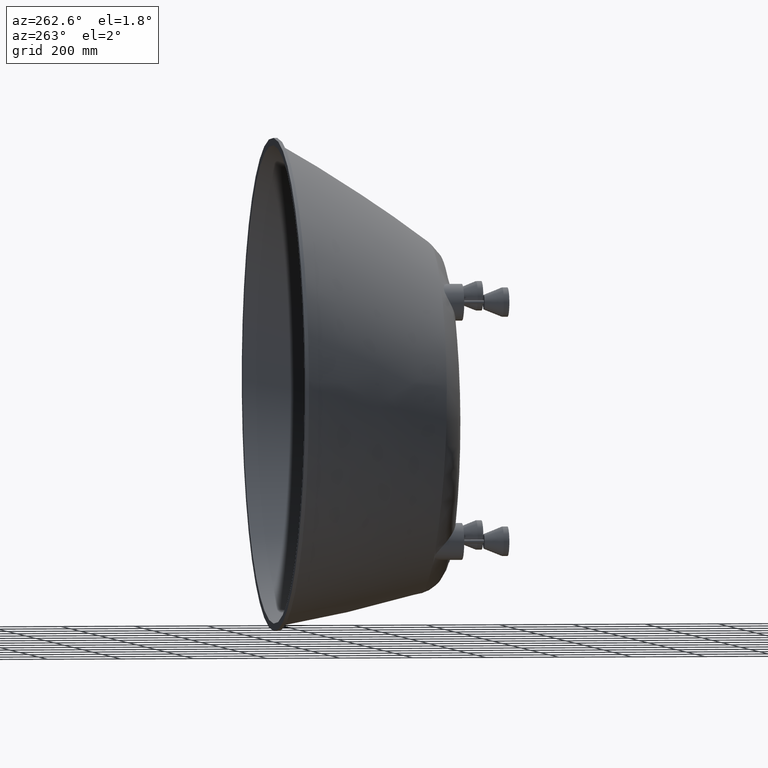
[diagram: clean part render]
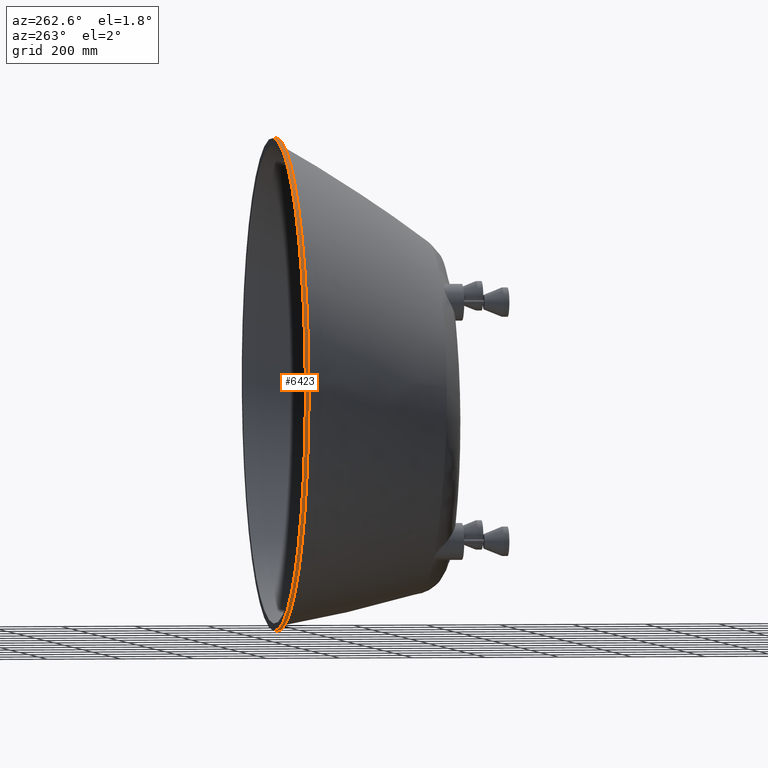
[diagram: same view with one face highlighted and labeled with its STEP entity id]
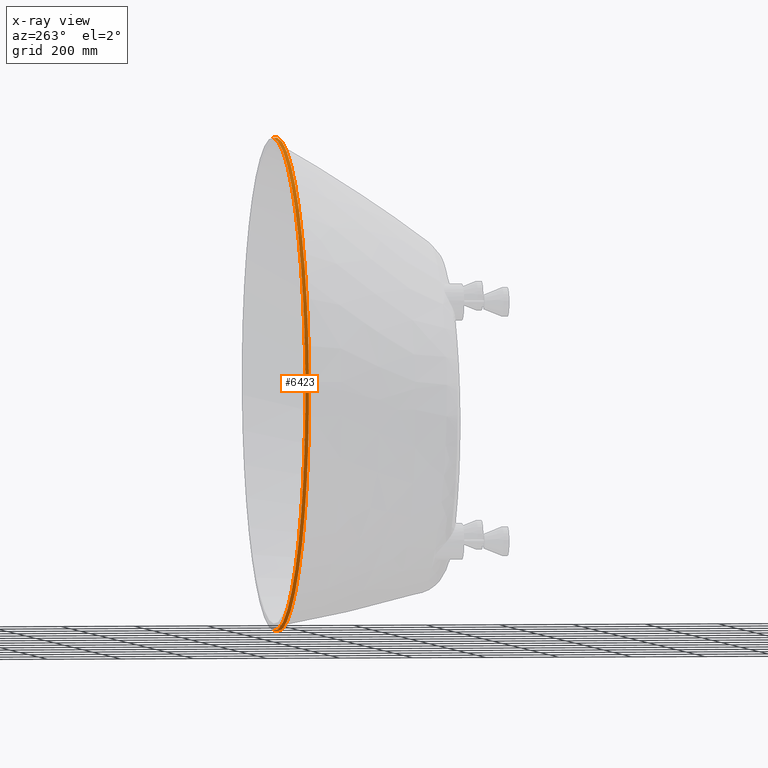
[diagram: x-ray of the same camera — body ghosted, the highlighted face saturated]
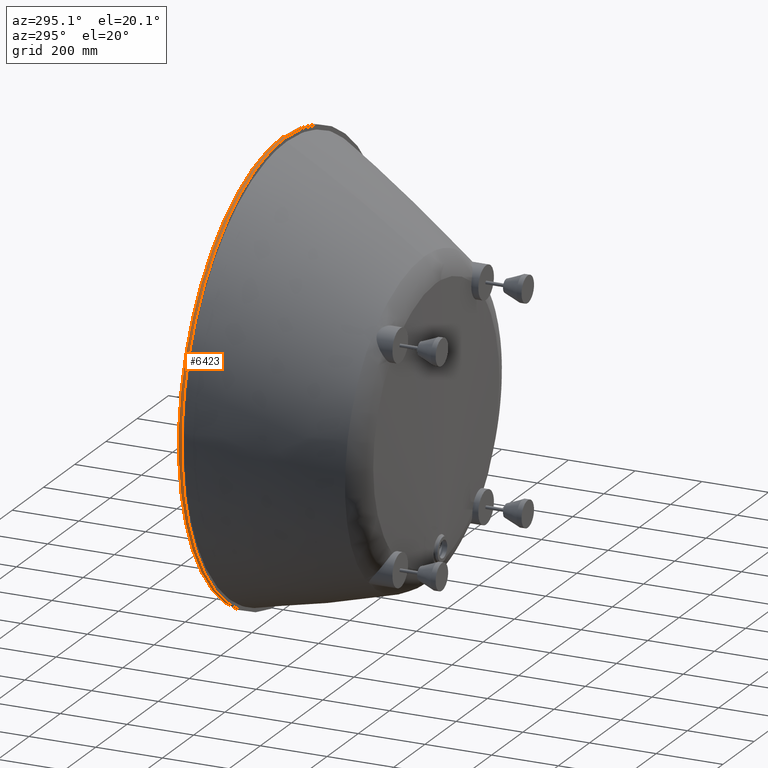
[diagram: same view with one face highlighted and labeled with its STEP entity id]
A machine part, auxiliary view. The second image highlights one B-rep face of the part: STEP entity #6423.
The next image is the same camera in x-ray: the body ghosted, the highlighted face saturated — about 0% of this face is hidden behind the body in this view.
A second angle (auxiliary view) of the same face is appended — the face is thin or edge-on in the first view.
In plain terms, the highlighted cylindrical surface (partial cylindrical patch) has radius 670 mm, axis along (0, 1, 0).
Its self-contained STEP definition (entity closure, byte-faithful):
#224 = CARTESIAN_POINT ( 'NONE',  ( 0.0000000000000000000, 0.0000000000000000000, 0.0000000000000000000 ) ) ;
#976 = DIRECTION ( 'NONE',  ( 0.0000000000000000000, 1.000000000000000000, 0.0000000000000000000 ) ) ;
#1057 = CIRCLE ( 'NONE', #5871, 670.0000000000000000 ) ;
#1464 = DIRECTION ( 'NONE',  ( 0.0000000000000000000, 1.000000000000000000, 0.0000000000000000000 ) ) ;
#2779 = CARTESIAN_POINT ( 'NONE',  ( 0.0000000000000000000, -10.00000000000000000, 0.0000000000000000000 ) ) ;
#2876 = DIRECTION ( 'NONE',  ( 0.0000000000000000000, 0.0000000000000000000, 1.000000000000000000 ) ) ;
#3464 = VECTOR ( 'NONE', #1464, 1000.000000000000000 ) ;
#4021 = AXIS2_PLACEMENT_3D ( 'NONE', #224, #5978, #11733 ) ;
#5871 = AXIS2_PLACEMENT_3D ( 'NONE', #10045, #15781, #2876 ) ;
#5978 = DIRECTION ( 'NONE',  ( 0.0000000000000000000, 1.000000000000000000, 0.0000000000000000000 ) ) ;
#6145 = ORIENTED_EDGE ( 'NONE', *, *, #6682, .T. ) ;
#6415 = CIRCLE ( 'NONE', #4021, 670.0000000000000000 ) ;
#6423 = ADVANCED_FACE ( 'NONE', ( #9951 ), #15686, .T. ) ;
#6682 = EDGE_CURVE ( 'NONE', #18441, #8557, #1057, .T. ) ;
#6707 = EDGE_CURVE ( 'NONE', #18441, #16866, #8625, .T. ) ;
#6958 = ORIENTED_EDGE ( 'NONE', *, *, #8156, .T. ) ;
#8132 = LINE ( 'NONE', #13878, #13690 ) ;
#8156 = EDGE_CURVE ( 'NONE', #8557, #14126, #8132, .T. ) ;
#8529 = DIRECTION ( 'NONE',  ( 0.0000000000000000000, 1.000000000000000000, 0.0000000000000000000 ) ) ;
#8557 = VERTEX_POINT ( 'NONE', #12075 ) ;
#8625 = LINE ( 'NONE', #14364, #3464 ) ;
#9178 = AXIS2_PLACEMENT_3D ( 'NONE', #2779, #8529, #14270 ) ;
#9951 = FACE_OUTER_BOUND ( 'NONE', #10843, .T. ) ;
#10045 = CARTESIAN_POINT ( 'NONE',  ( 0.0000000000000000000, -10.00000000000000000, 0.0000000000000000000 ) ) ;
#10843 = EDGE_LOOP ( 'NONE', ( #15532, #6145, #6958, #16101 ) ) ;
#11733 = DIRECTION ( 'NONE',  ( 0.0000000000000000000, 0.0000000000000000000, 1.000000000000000000 ) ) ;
#12075 = CARTESIAN_POINT ( 'NONE',  ( 0.0000000000000000000, -10.00000000000000000, 670.0000000000000000 ) ) ;
#13007 = EDGE_CURVE ( 'NONE', #16866, #14126, #6415, .T. ) ;
#13690 = VECTOR ( 'NONE', #976, 1000.000000000000000 ) ;
#13778 = CARTESIAN_POINT ( 'NONE',  ( 8.205133554287266286E-14, -10.00000000000000000, -670.0000000000000000 ) ) ;
#13878 = CARTESIAN_POINT ( 'NONE',  ( 0.0000000000000000000, -10.00000000000000000, 670.0000000000000000 ) ) ;
#14126 = VERTEX_POINT ( 'NONE', #14330 ) ;
#14270 = DIRECTION ( 'NONE',  ( 0.0000000000000000000, 0.0000000000000000000, 1.000000000000000000 ) ) ;
#14330 = CARTESIAN_POINT ( 'NONE',  ( 0.0000000000000000000, 0.0000000000000000000, 670.0000000000000000 ) ) ;
#14364 = CARTESIAN_POINT ( 'NONE',  ( 8.205133554287266286E-14, -10.00000000000000000, -670.0000000000000000 ) ) ;
#15532 = ORIENTED_EDGE ( 'NONE', *, *, #6707, .F. ) ;
#15686 = CYLINDRICAL_SURFACE ( 'NONE', #9178, 670.0000000000000000 ) ;
#15781 = DIRECTION ( 'NONE',  ( 0.0000000000000000000, 1.000000000000000000, 0.0000000000000000000 ) ) ;
#16101 = ORIENTED_EDGE ( 'NONE', *, *, #13007, .F. ) ;
#16668 = CARTESIAN_POINT ( 'NONE',  ( 8.205133554287266286E-14, 0.0000000000000000000, -670.0000000000000000 ) ) ;
#16866 = VERTEX_POINT ( 'NONE', #16668 ) ;
#18441 = VERTEX_POINT ( 'NONE', #13778 ) ;